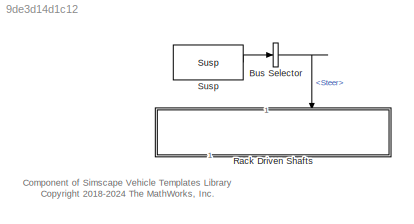
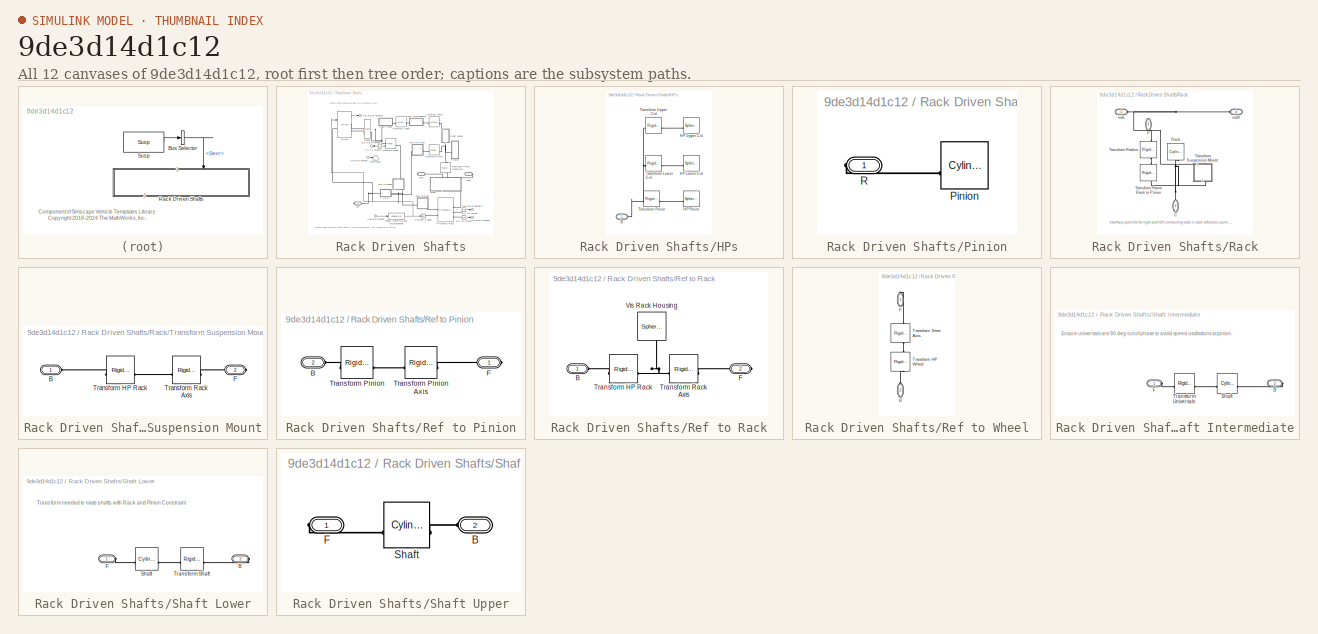
[diagram: thumbnail index - all 12 canvases of the model, root first then tree order]
MODEL slx_9de3d14d1c12
KIND library
CONFIG AbsTol = auto
CONFIG EnableMultiTasking = off
CONFIG FixedStep = auto
CONFIG MaxStep = auto
CONFIG MinStep = auto
CONFIG RelTol = 1e-3
CONFIG SampleTimeConstraint = Unconstrained
CONFIG SolverName = VariableStepAuto
CONFIG StartTime = 0.0
CONFIG StopTime = 10.0
BLOCK [BusSelector] Bus Selector
  OutputSignals = Steer
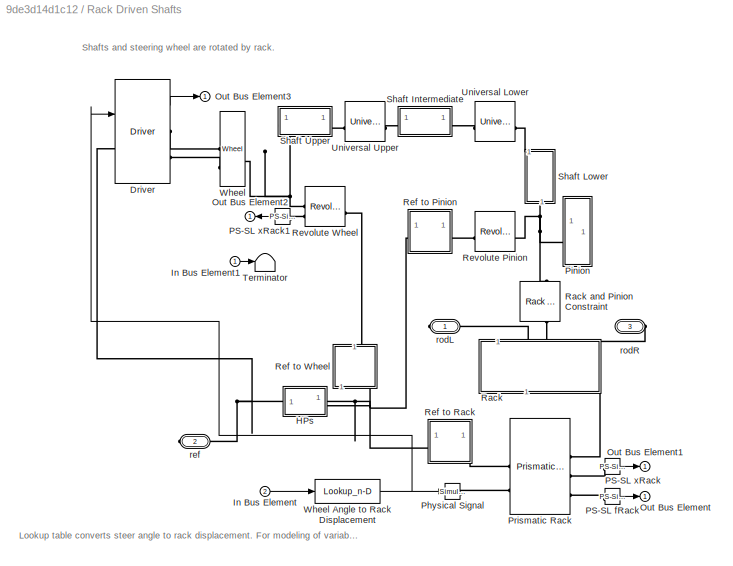
BLOCK [SubSystem] Rack Driven Shafts
  NameLocation = left
  Tag = PublishSubsystem
  VariantControl = Rack
BLOCK [Reference] Rack Driven Shafts/Driver  REF=Driver_Systems/Driver
  AttributesFormatString = %<LabelModeActiveChoice>
  SourceBlock = Driver_Systems/Driver
BLOCK [SubSystem] Rack Driven Shafts/HPs
BLOCK [PMIOPort] Rack Driven Shafts/HPs/B
  Side = Left
BLOCK [Reference] Rack Driven Shafts/HPs/HP Lower Col  REF=sm_lib/Body Elements/Spherical Solid
  SourceBlock = sm_lib/Body Elements/Spherical Solid
  SourceType = Spherical Solid
BLOCK [Reference] Rack Driven Shafts/HPs/HP Pinion  REF=sm_lib/Body Elements/Spherical Solid
  SourceBlock = sm_lib/Body Elements/Spherical Solid
  SourceType = Spherical Solid
BLOCK [Reference] Rack Driven Shafts/HPs/HP Upper Col  REF=sm_lib/Body Elements/Spherical Solid
  SourceBlock = sm_lib/Body Elements/Spherical Solid
  SourceType = Spherical Solid
BLOCK [Reference] Rack Driven Shafts/HPs/Transform Lower Col  REF=sm_lib/Frames and
Transforms/Rigid
Transform
  SourceBlock = sm_lib/Frames and\nTransforms/Rigid\nTransform
  SourceType = Rigid\nTransform
BLOCK [Reference] Rack Driven Shafts/HPs/Transform Pinion  REF=sm_lib/Frames and
Transforms/Rigid
Transform
  SourceBlock = sm_lib/Frames and\nTransforms/Rigid\nTransform
  SourceType = Rigid\nTransform
BLOCK [Reference] Rack Driven Shafts/HPs/Transform Upper Col  REF=sm_lib/Frames and
Transforms/Rigid
Transform
  SourceBlock = sm_lib/Frames and\nTransforms/Rigid\nTransform
  SourceType = Rigid\nTransform
BLOCK [Inport] Rack Driven Shafts/In Bus Element
  Port = 2
BLOCK [Inport] Rack Driven Shafts/In Bus Element1
BLOCK [Outport] Rack Driven Shafts/Out Bus Element
  VectorParamsAs1DForOutWhenUnconnected = off
BLOCK [Outport] Rack Driven Shafts/Out Bus Element1
  VectorParamsAs1DForOutWhenUnconnected = off
BLOCK [Outport] Rack Driven Shafts/Out Bus Element2
  VectorParamsAs1DForOutWhenUnconnected = off
BLOCK [Outport] Rack Driven Shafts/Out Bus Element3
  VectorParamsAs1DForOutWhenUnconnected = off
BLOCK [Reference] Rack Driven Shafts/PS-SL fRack  REF=nesl_utility/PS-Simulink
Converter
  SourceBlock = nesl_utility/PS-Simulink\nConverter
  SourceType = PS-Simulink\nConverter
BLOCK [Reference] Rack Driven Shafts/PS-SL xRack  REF=nesl_utility/PS-Simulink
Converter
  SourceBlock = nesl_utility/PS-Simulink\nConverter
  SourceType = PS-Simulink\nConverter
BLOCK [Reference] Rack Driven Shafts/PS-SL xRack1  REF=nesl_utility/PS-Simulink
Converter
  SourceBlock = nesl_utility/PS-Simulink\nConverter
  SourceType = PS-Simulink\nConverter
BLOCK [Reference] Rack Driven Shafts/Physical Signal  REF=nesl_utility/Simulink-PS
Converter
  AttributesFormatString = Filter Time Constant\n%<InputFilterTimeConstant> sec
  SourceBlock = nesl_utility/Simulink-PS\nConverter
  SourceType = Simulink-PS\nConverter
BLOCK [SubSystem] Rack Driven Shafts/Pinion
BLOCK [Reference] Rack Driven Shafts/Pinion/Pinion  REF=sm_lib/Body Elements/Cylindrical Solid
  SourceBlock = sm_lib/Body Elements/Cylindrical Solid
  SourceType = Cylindrical Solid
BLOCK [PMIOPort] Rack Driven Shafts/Pinion/R
  Side = Right
BLOCK [Reference] Rack Driven Shafts/Prismatic Rack  REF=sm_lib/Joints/Prismatic
Joint
  SourceBlock = sm_lib/Joints/Prismatic\nJoint
  SourceType = Prismatic\nJoint
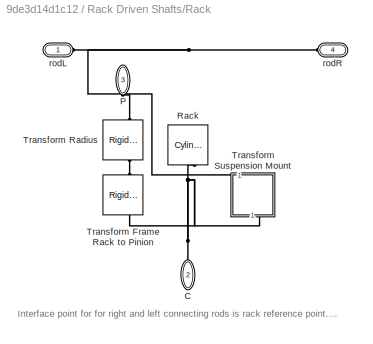
BLOCK [SubSystem] Rack Driven Shafts/Rack
  NameLocation = left
BLOCK [Reference] Rack Driven Shafts/Rack and Pinion Constraint  REF=sm_lib/Gears and
Couplings/Gears/Rack and Pinion
Constraint
  NameLocation = right
  SourceBlock = sm_lib/Gears and\nCouplings/Gears/Rack and Pinion\nConstraint
  SourceType = Rack and Pinion\nConstraint
BLOCK [PMIOPort] Rack Driven Shafts/Rack/C
  NameLocation = left
  Port = 2
  Side = Right
BLOCK [PMIOPort] Rack Driven Shafts/Rack/P
  NameLocation = left
  Port = 3
  Side = Left
BLOCK [Reference] Rack Driven Shafts/Rack/Rack  REF=sm_lib/Body Elements/Cylindrical Solid
  NameLocation = right
  SourceBlock = sm_lib/Body Elements/Cylindrical Solid
  SourceType = Cylindrical Solid
BLOCK [Reference] Rack Driven Shafts/Rack/Transform Frame Rack to Pinion   REF=sm_lib/Frames and
Transforms/Rigid
Transform
  NameLocation = left
  SourceBlock = sm_lib/Frames and\nTransforms/Rigid\nTransform
  SourceType = Rigid\nTransform
BLOCK [Reference] Rack Driven Shafts/Rack/Transform Radius  REF=sm_lib/Frames and
Transforms/Rigid
Transform
  NameLocation = left
  SourceBlock = sm_lib/Frames and\nTransforms/Rigid\nTransform
  SourceType = Rigid\nTransform
BLOCK [SubSystem] Rack Driven Shafts/Rack/Transform Suspension Mount
  NameLocation = right
BLOCK [PMIOPort] Rack Driven Shafts/Rack/Transform Suspension Mount/B
  Side = Left
BLOCK [PMIOPort] Rack Driven Shafts/Rack/Transform Suspension Mount/F
  Port = 2
  Side = Right
BLOCK [Reference] Rack Driven Shafts/Rack/Transform Suspension Mount/Transform HP Rack  REF=sm_lib/Frames and
Transforms/Rigid
Transform
  SourceBlock = sm_lib/Frames and\nTransforms/Rigid\nTransform
  SourceType = Rigid\nTransform
BLOCK [Reference] Rack Driven Shafts/Rack/Transform Suspension Mount/Transform Rack Axis  REF=sm_lib/Frames and
Transforms/Rigid
Transform
  SourceBlock = sm_lib/Frames and\nTransforms/Rigid\nTransform
  SourceType = Rigid\nTransform
BLOCK [PMIOPort] Rack Driven Shafts/Rack/rodL
  Side = Left
BLOCK [PMIOPort] Rack Driven Shafts/Rack/rodR
  Port = 4
  Side = Left
BLOCK [SubSystem] Rack Driven Shafts/Ref to Pinion
BLOCK [PMIOPort] Rack Driven Shafts/Ref to Pinion/B
  Port = 2
  Side = Left
BLOCK [PMIOPort] Rack Driven Shafts/Ref to Pinion/F
  Side = Right
BLOCK [Reference] Rack Driven Shafts/Ref to Pinion/Transform Pinion  REF=sm_lib/Frames and
Transforms/Rigid
Transform
  SourceBlock = sm_lib/Frames and\nTransforms/Rigid\nTransform
  SourceType = Rigid\nTransform
BLOCK [Reference] Rack Driven Shafts/Ref to Pinion/Transform Pinion Axis  REF=sm_lib/Frames and
Transforms/Rigid
Transform
  SourceBlock = sm_lib/Frames and\nTransforms/Rigid\nTransform
  SourceType = Rigid\nTransform
BLOCK [SubSystem] Rack Driven Shafts/Ref to Rack
BLOCK [PMIOPort] Rack Driven Shafts/Ref to Rack/B
  Side = Left
BLOCK [PMIOPort] Rack Driven Shafts/Ref to Rack/F
  Port = 2
  Side = Right
BLOCK [Reference] Rack Driven Shafts/Ref to Rack/Transform HP Rack  REF=sm_lib/Frames and
Transforms/Rigid
Transform
  SourceBlock = sm_lib/Frames and\nTransforms/Rigid\nTransform
  SourceType = Rigid\nTransform
BLOCK [Reference] Rack Driven Shafts/Ref to Rack/Transform Rack Axis  REF=sm_lib/Frames and
Transforms/Rigid
Transform
  SourceBlock = sm_lib/Frames and\nTransforms/Rigid\nTransform
  SourceType = Rigid\nTransform
BLOCK [Reference] Rack Driven Shafts/Ref to Rack/Vis Rack Housing  REF=sm_lib/Body Elements/Spherical Solid
  NameLocation = left
  SourceBlock = sm_lib/Body Elements/Spherical Solid
  SourceType = Spherical Solid
BLOCK [SubSystem] Rack Driven Shafts/Ref to Wheel
  NameLocation = left
BLOCK [PMIOPort] Rack Driven Shafts/Ref to Wheel/B
  NameLocation = right
  Port = 2
  Side = Left
BLOCK [PMIOPort] Rack Driven Shafts/Ref to Wheel/F
  NameLocation = left
  Side = Right
BLOCK [Reference] Rack Driven Shafts/Ref to Wheel/Transform HP Wheel  REF=sm_lib/Frames and
Transforms/Rigid
Transform
  NameLocation = left
  SourceBlock = sm_lib/Frames and\nTransforms/Rigid\nTransform
  SourceType = Rigid\nTransform
BLOCK [Reference] Rack Driven Shafts/Ref to Wheel/Transform Steer Axis  REF=sm_lib/Frames and
Transforms/Rigid
Transform
  NameLocation = left
  SourceBlock = sm_lib/Frames and\nTransforms/Rigid\nTransform
  SourceType = Rigid\nTransform
BLOCK [Reference] Rack Driven Shafts/Revolute Pinion  REF=sm_lib/Joints/Revolute Joint
  SourceBlock = sm_lib/Joints/Revolute Joint
  SourceType = Revolute Joint
BLOCK [Reference] Rack Driven Shafts/Revolute Wheel  REF=sm_lib/Joints/Revolute Joint
  SourceBlock = sm_lib/Joints/Revolute Joint
  SourceType = Revolute Joint
BLOCK [SubSystem] Rack Driven Shafts/Shaft Intermediate
BLOCK [PMIOPort] Rack Driven Shafts/Shaft Intermediate/B
  Port = 2
  Side = Right
BLOCK [PMIOPort] Rack Driven Shafts/Shaft Intermediate/F
  Side = Left
BLOCK [Reference] Rack Driven Shafts/Shaft Intermediate/Shaft  REF=sm_lib/Body Elements/Cylindrical Solid
  SourceBlock = sm_lib/Body Elements/Cylindrical Solid
  SourceType = Cylindrical Solid
BLOCK [Reference] Rack Driven Shafts/Shaft Intermediate/Transform Universals  REF=sm_lib/Frames and
Transforms/Rigid
Transform
  SourceBlock = sm_lib/Frames and\nTransforms/Rigid\nTransform
  SourceType = Rigid\nTransform
BLOCK [SubSystem] Rack Driven Shafts/Shaft Lower
  NameLocation = left
BLOCK [PMIOPort] Rack Driven Shafts/Shaft Lower/B
  Port = 2
  Side = Right
BLOCK [PMIOPort] Rack Driven Shafts/Shaft Lower/F
  Side = Left
BLOCK [Reference] Rack Driven Shafts/Shaft Lower/Shaft  REF=sm_lib/Body Elements/Cylindrical Solid
  SourceBlock = sm_lib/Body Elements/Cylindrical Solid
  SourceType = Cylindrical Solid
BLOCK [Reference] Rack Driven Shafts/Shaft Lower/Transform Shaft  REF=sm_lib/Frames and
Transforms/Rigid
Transform
  SourceBlock = sm_lib/Frames and\nTransforms/Rigid\nTransform
  SourceType = Rigid\nTransform
BLOCK [SubSystem] Rack Driven Shafts/Shaft Upper
BLOCK [PMIOPort] Rack Driven Shafts/Shaft Upper/B
  Port = 2
  Side = Left
BLOCK [PMIOPort] Rack Driven Shafts/Shaft Upper/F
  Side = Right
BLOCK [Reference] Rack Driven Shafts/Shaft Upper/Shaft  REF=sm_lib/Body Elements/Cylindrical Solid
  SourceBlock = sm_lib/Body Elements/Cylindrical Solid
  SourceType = Cylindrical Solid
BLOCK [Terminator] Rack Driven Shafts/Terminator
BLOCK [Reference] Rack Driven Shafts/Universal Lower  REF=sm_lib/Joints/Universal
Joint
  NameLocation = top
  SourceBlock = sm_lib/Joints/Universal\nJoint
  SourceType = Universal\nJoint
BLOCK [Reference] Rack Driven Shafts/Universal Upper  REF=sm_lib/Joints/Universal
Joint
  NameLocation = top
  SourceBlock = sm_lib/Joints/Universal\nJoint
  SourceType = Universal\nJoint
BLOCK [Reference] Rack Driven Shafts/Wheel  REF=SteeringWheel/Wheel
  SourceBlock = SteeringWheel/Wheel
BLOCK [Lookup_n-D] Rack Driven Shafts/Wheel Angle to Rack Displacement
  BreakpointsForDimension1 = whl2rack_whlangle
  InputPortMap = u0
  InternalRulePriority = Speed
  NameLocation = top
  NumberOfTableDimensions = 1
  RndMeth = Simplest
  Table = whl2rack_rackdisp
BLOCK [PMIOPort] Rack Driven Shafts/ref
  Port = 2
  Side = Right
BLOCK [PMIOPort] Rack Driven Shafts/rodL
  Side = Right
BLOCK [PMIOPort] Rack Driven Shafts/rodR
  Port = 3
  Side = Right
BLOCK [Reference] Susp  REF=Vehicle_Inputs/Control Bus/Susp
  SourceBlock = Vehicle_Inputs/Control Bus/Susp
ANNOTATION (root): Component of Simscape Vehicle Templates Library <copyright redacted>
ANNOTATION Rack Driven Shafts: Lookup table converts steer angle to rack displacement. For modeling of variable gear ratios.
ANNOTATION Rack Driven Shafts: Shafts and steering wheel are rotated by rack.
ANNOTATION Rack Driven Shafts/Rack: Interface point for for right and left connecting rods is rack reference point. This permits the rack subsystem to mate with the connecting rods without knowing where they are, as both systems (rack and linkages) know where the front axle reference point is.
ANNOTATION Rack Driven Shafts/Shaft Intermediate: Ensure universals are 90 deg out of phase to avoid speed oscillations at pinion.
ANNOTATION Rack Driven Shafts/Shaft Lower: Transform needed to mate shafts with Rack and Pinion Constraint
LINE Bus Selector:1 -> Rack Driven Shafts:2
LINE Susp:1 -> Bus Selector:1
